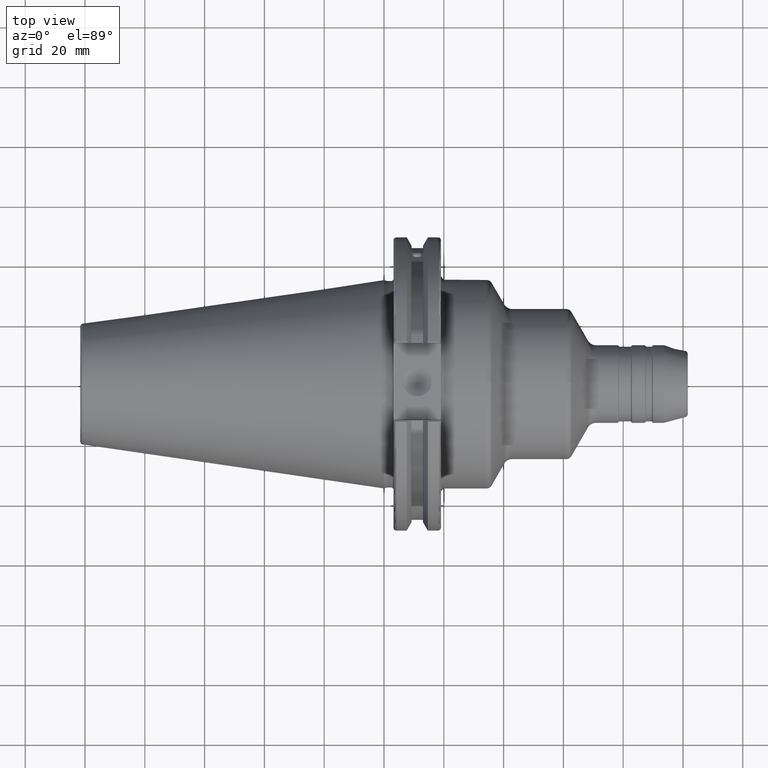
[diagram: clean part render]
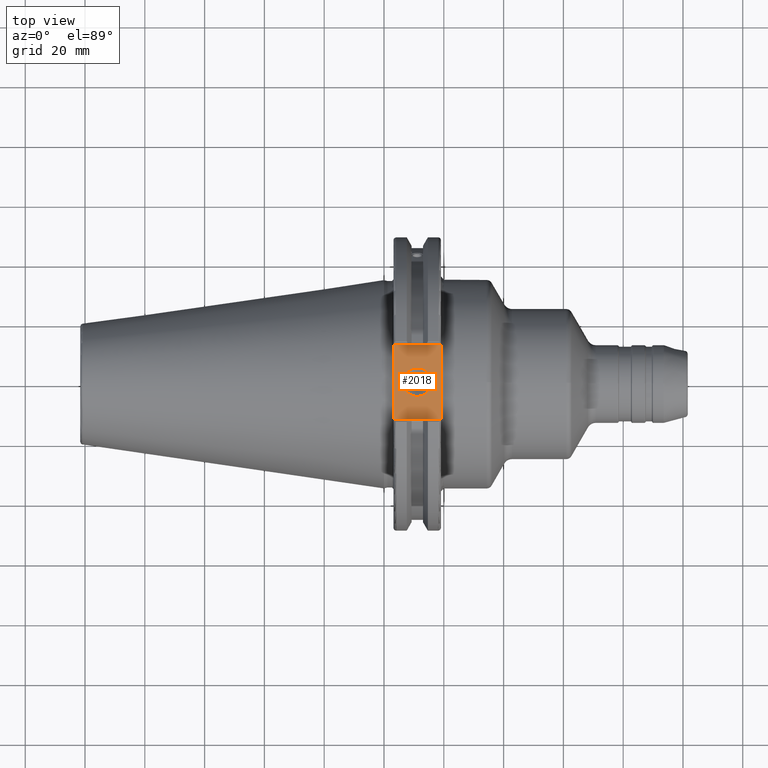
[diagram: same view with one face highlighted and labeled with its STEP entity id]
A machine part, top view. The second image highlights one B-rep face of the part: STEP entity #2018.
In plain terms, the highlighted planar face has unit normal (0, 0, 1).
Its self-contained STEP definition (entity closure, byte-faithful):
#66=PLANE('',#2289);
#108=FACE_BOUND('',#403,.T.);
#273=FACE_OUTER_BOUND('',#402,.T.);
#402=EDGE_LOOP('',(#1842,#1843,#1844,#1845));
#403=EDGE_LOOP('',(#1846));
#464=LINE('',#3697,#571);
#482=LINE('',#3786,#589);
#503=LINE('',#3952,#610);
#505=LINE('',#3955,#612);
#571=VECTOR('',#2720,10.);
#589=VECTOR('',#2756,10.);
#610=VECTOR('',#2831,10.);
#612=VECTOR('',#2835,10.);
#757=CIRCLE('',#2281,4.7625);
#907=VERTEX_POINT('',#3694);
#908=VERTEX_POINT('',#3696);
#929=VERTEX_POINT('',#3783);
#930=VERTEX_POINT('',#3785);
#966=VERTEX_POINT('',#3991);
#1167=EDGE_CURVE('',#907,#908,#464,.T.);
#1196=EDGE_CURVE('',#929,#930,#482,.T.);
#1243=EDGE_CURVE('',#930,#907,#503,.T.);
#1245=EDGE_CURVE('',#908,#929,#505,.T.);
#1260=EDGE_CURVE('',#966,#966,#757,.T.);
#1842=ORIENTED_EDGE('',*,*,#1243,.F.);
#1843=ORIENTED_EDGE('',*,*,#1196,.F.);
#1844=ORIENTED_EDGE('',*,*,#1245,.F.);
#1845=ORIENTED_EDGE('',*,*,#1167,.F.);
#1846=ORIENTED_EDGE('',*,*,#1260,.T.);
#2018=ADVANCED_FACE('',(#273,#108),#66,.T.);
#2281=AXIS2_PLACEMENT_3D('',#3992,#2870,#2871);
#2289=AXIS2_PLACEMENT_3D('',#4001,#2887,#2888);
#2720=DIRECTION('',(0.,1.,0.));
#2756=DIRECTION('',(0.,-1.,0.));
#2831=DIRECTION('',(-1.,1.31581988103722E-16,0.));
#2835=DIRECTION('',(1.,0.,0.));
#2870=DIRECTION('center_axis',(0.,0.,-1.));
#2871=DIRECTION('ref_axis',(1.,0.,0.));
#2887=DIRECTION('center_axis',(0.,0.,1.));
#2888=DIRECTION('ref_axis',(1.,0.,0.));
#3694=CARTESIAN_POINT('',(3.175,-12.45,37.719));
#3696=CARTESIAN_POINT('',(3.175,12.45,37.719));
#3697=CARTESIAN_POINT('',(3.175,24.60625,37.719));
#3783=CARTESIAN_POINT('',(19.05,12.45,37.719));
#3785=CARTESIAN_POINT('',(19.05,-12.45,37.719));
#3786=CARTESIAN_POINT('',(19.05,0.,37.719));
#3952=CARTESIAN_POINT('',(10.63125,-12.45,37.719));
#3955=CARTESIAN_POINT('',(19.06875,12.45,37.719));
#3991=CARTESIAN_POINT('',(6.3716,-5.83238038093927E-16,37.719));
#3992=CARTESIAN_POINT('Origin',(11.1341,0.,37.719));
#4001=CARTESIAN_POINT('Origin',(18.0875,0.,37.719));